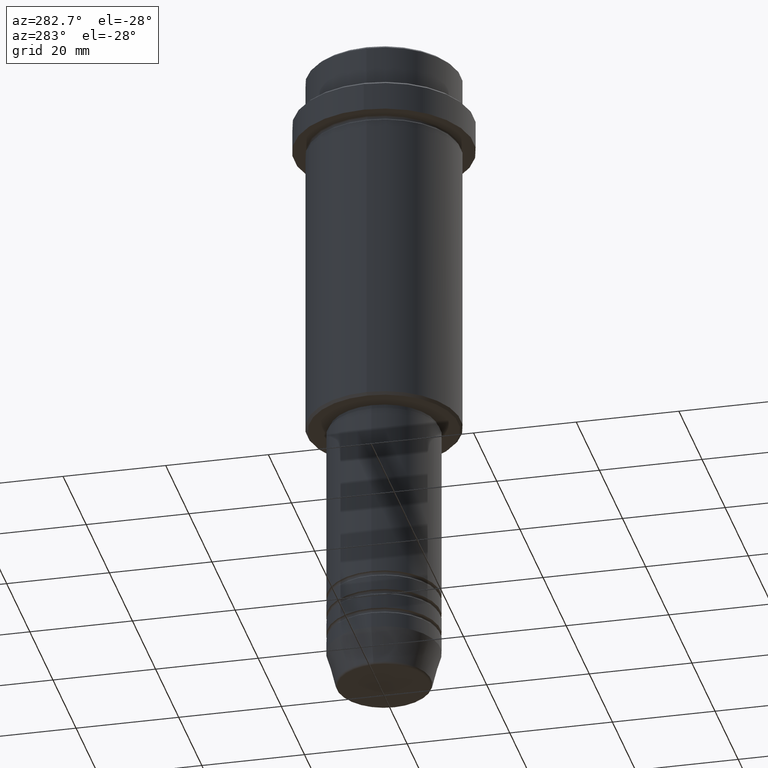
[diagram: clean part render]
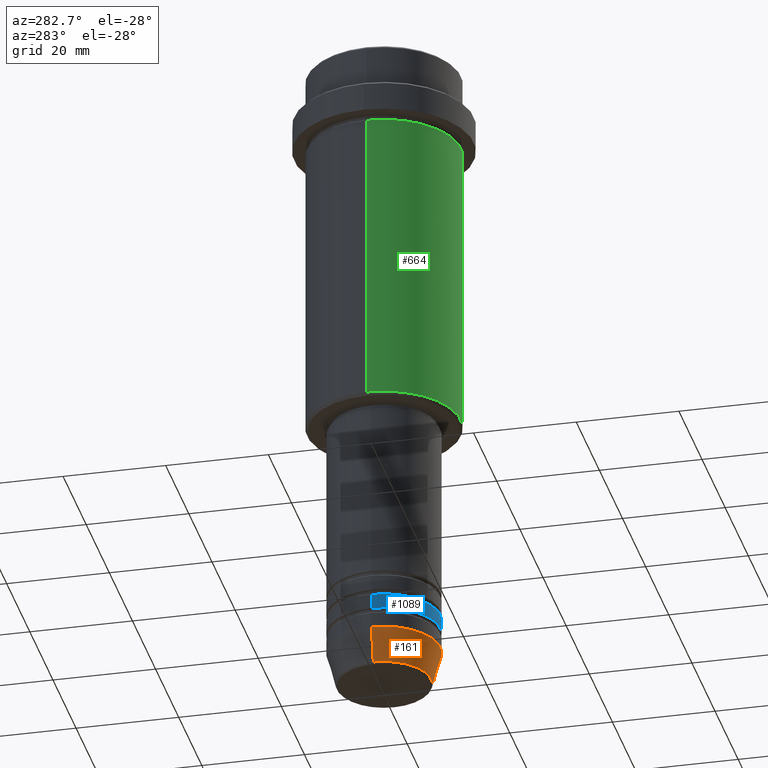
[diagram: same view with three faces highlighted in distinct colors, each labeled with its STEP entity id]
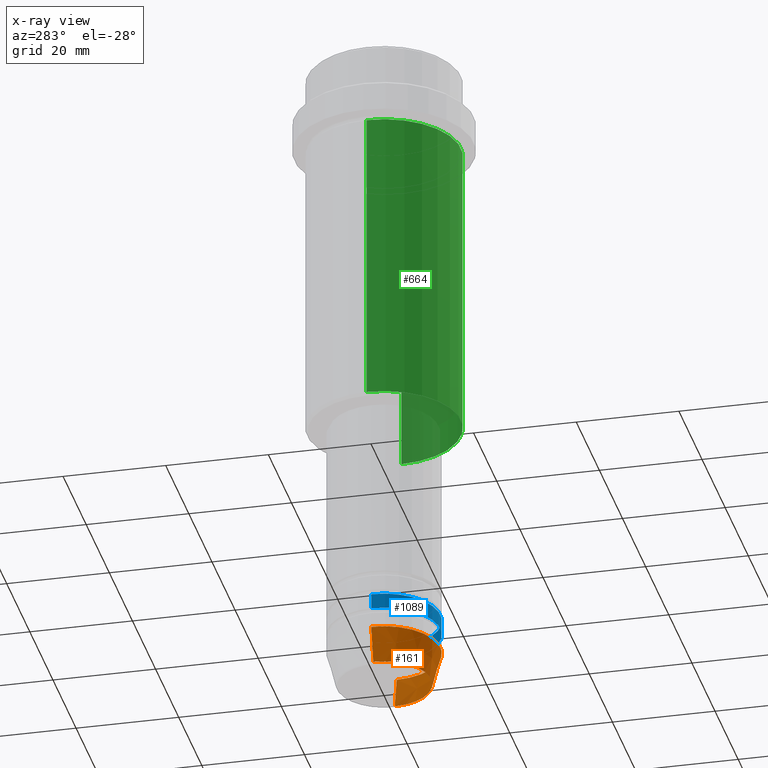
[diagram: x-ray of the same camera — body ghosted, the three highlighted faces saturated]
A machine part, auxiliary view with three faces highlighted in distinct colors.
The next image is the same camera in x-ray (body ghosted, the three faces saturated) — at least one of them is partly hidden behind the body in this view.
Their STEP definitions:

[orange] entity #161 — the highlighted conical surface has half-angle 15 deg.
#38 = LINE ( 'NONE', #672, #1401 ) ;
#68 = VERTEX_POINT ( 'NONE', #296 ) ;
#161 = ADVANCED_FACE ( 'NONE', ( #473 ), #354, .T. ) ;
#224 = DIRECTION ( 'NONE',  ( 0.2588190451025213501, 0.000000000000000000, 0.9659258262890680902 ) ) ;
#296 = CARTESIAN_POINT ( 'NONE',  ( -11.00000000000000000, 1.347111479062088405E-15, -123.0000000000000000 ) ) ;
#354 = CONICAL_SURFACE ( 'NONE', #538, 11.00000000000000000, 0.2617993877991500740 ) ;
#412 = CARTESIAN_POINT ( 'NONE',  ( 0.000000000000000000, 0.000000000000000000, -123.0000000000000000 ) ) ;
#440 = EDGE_LOOP ( 'NONE', ( #731, #480, #917, #903 ) ) ;
#473 = FACE_OUTER_BOUND ( 'NONE', #440, .T. ) ;
#480 = ORIENTED_EDGE ( 'NONE', *, *, #1203, .T. ) ;
#499 = VERTEX_POINT ( 'NONE', #1074 ) ;
#531 = CARTESIAN_POINT ( 'NONE',  ( 0.000000000000000000, 0.000000000000000000, -129.6294095225512422 ) ) ;
#538 = AXIS2_PLACEMENT_3D ( 'NONE', #412, #1385, #1057 ) ;
#540 = CARTESIAN_POINT ( 'NONE',  ( 0.000000000000000000, 0.000000000000000000, -123.0000000000000000 ) ) ;
#583 = VECTOR ( 'NONE', #224, 1000.000000000000000 ) ;
#584 = EDGE_CURVE ( 'NONE', #1094, #68, #38, .T. ) ;
#651 = LINE ( 'NONE', #1079, #583 ) ;
#672 = CARTESIAN_POINT ( 'NONE',  ( -11.00000000000000000, 1.347111479062088405E-15, -123.0000000000000000 ) ) ;
#686 = EDGE_CURVE ( 'NONE', #1340, #499, #651, .T. ) ;
#731 = ORIENTED_EDGE ( 'NONE', *, *, #584, .F. ) ;
#765 = DIRECTION ( 'NONE',  ( 1.000000000000000000, 0.000000000000000000, 0.000000000000000000 ) ) ;
#876 = CIRCLE ( 'NONE', #1152, 9.223655072137187716 ) ;
#903 = ORIENTED_EDGE ( 'NONE', *, *, #1212, .F. ) ;
#915 = AXIS2_PLACEMENT_3D ( 'NONE', #540, #1391, #984 ) ;
#917 = ORIENTED_EDGE ( 'NONE', *, *, #686, .T. ) ;
#984 = DIRECTION ( 'NONE',  ( 1.000000000000000000, 0.000000000000000000, 0.000000000000000000 ) ) ;
#1057 = DIRECTION ( 'NONE',  ( 1.000000000000000000, 0.000000000000000000, 0.000000000000000000 ) ) ;
#1058 = DIRECTION ( 'NONE',  ( -0.000000000000000000, -0.000000000000000000, 1.000000000000000000 ) ) ;
#1074 = CARTESIAN_POINT ( 'NONE',  ( 11.00000000000000000, 0.000000000000000000, -123.0000000000000000 ) ) ;
#1079 = CARTESIAN_POINT ( 'NONE',  ( 11.00000000000000000, 0.000000000000000000, -123.0000000000000000 ) ) ;
#1094 = VERTEX_POINT ( 'NONE', #1163 ) ;
#1100 = DIRECTION ( 'NONE',  ( -0.2588190451025213501, 3.169619151431772337E-17, 0.9659258262890680902 ) ) ;
#1112 = CARTESIAN_POINT ( 'NONE',  ( 9.223655072137187716, 0.000000000000000000, -129.6294095225512422 ) ) ;
#1152 = AXIS2_PLACEMENT_3D ( 'NONE', #531, #1058, #765 ) ;
#1163 = CARTESIAN_POINT ( 'NONE',  ( -9.223655072137187716, 1.238341722557647004E-15, -129.6294095225512422 ) ) ;
#1203 = EDGE_CURVE ( 'NONE', #1094, #1340, #876, .T. ) ;
#1212 = EDGE_CURVE ( 'NONE', #68, #499, #1331, .T. ) ;
#1331 = CIRCLE ( 'NONE', #915, 11.00000000000000000 ) ;
#1340 = VERTEX_POINT ( 'NONE', #1112 ) ;
#1385 = DIRECTION ( 'NONE',  ( -0.000000000000000000, -0.000000000000000000, 1.000000000000000000 ) ) ;
#1391 = DIRECTION ( 'NONE',  ( -0.000000000000000000, -0.000000000000000000, 1.000000000000000000 ) ) ;
#1401 = VECTOR ( 'NONE', #1100, 1000.000000000000000 ) ;

[blue] entity #1089 — the highlighted cylindrical surface (partial cylindrical patch) has radius 11 mm, axis along (-0, -0, 1).
#37 = ORIENTED_EDGE ( 'NONE', *, *, #747, .F. ) ;
#55 = DIRECTION ( 'NONE',  ( -0.000000000000000000, -0.000000000000000000, 1.000000000000000000 ) ) ;
#71 = CARTESIAN_POINT ( 'NONE',  ( -11.00000000000000000, 1.347111479062088405E-15, -118.9999999999998863 ) ) ;
#75 = FACE_OUTER_BOUND ( 'NONE', #623, .T. ) ;
#90 = VERTEX_POINT ( 'NONE', #1361 ) ;
#105 = AXIS2_PLACEMENT_3D ( 'NONE', #375, #55, #501 ) ;
#152 = VECTOR ( 'NONE', #792, 1000.000000000000000 ) ;
#168 = DIRECTION ( 'NONE',  ( 1.000000000000000000, 0.000000000000000000, 0.000000000000000000 ) ) ;
#183 = DIRECTION ( 'NONE',  ( -0.000000000000000000, -0.000000000000000000, 1.000000000000000000 ) ) ;
#184 = DIRECTION ( 'NONE',  ( -0.000000000000000000, -0.000000000000000000, 1.000000000000000000 ) ) ;
#192 = EDGE_CURVE ( 'NONE', #636, #713, #677, .T. ) ;
#299 = EDGE_CURVE ( 'NONE', #636, #555, #911, .T. ) ;
#351 = CARTESIAN_POINT ( 'NONE',  ( -11.00000000000000000, 1.347111479062088405E-15, 0.000000000000000000 ) ) ;
#375 = CARTESIAN_POINT ( 'NONE',  ( 0.000000000000000000, 0.000000000000000000, -118.9999999999998863 ) ) ;
#416 = CARTESIAN_POINT ( 'NONE',  ( -11.00000000000000000, 1.347111479062088405E-15, -115.9999999999999005 ) ) ;
#467 = VECTOR ( 'NONE', #470, 1000.000000000000000 ) ;
#470 = DIRECTION ( 'NONE',  ( -0.000000000000000000, -0.000000000000000000, 1.000000000000000000 ) ) ;
#486 = DIRECTION ( 'NONE',  ( 1.000000000000000000, 0.000000000000000000, 0.000000000000000000 ) ) ;
#501 = DIRECTION ( 'NONE',  ( 1.000000000000000000, 0.000000000000000000, 0.000000000000000000 ) ) ;
#555 = VERTEX_POINT ( 'NONE', #836 ) ;
#609 = AXIS2_PLACEMENT_3D ( 'NONE', #1240, #183, #168 ) ;
#610 = AXIS2_PLACEMENT_3D ( 'NONE', #853, #184, #486 ) ;
#623 = EDGE_LOOP ( 'NONE', ( #869, #740, #928, #37 ) ) ;
#636 = VERTEX_POINT ( 'NONE', #71 ) ;
#677 = LINE ( 'NONE', #351, #152 ) ;
#713 = VERTEX_POINT ( 'NONE', #416 ) ;
#740 = ORIENTED_EDGE ( 'NONE', *, *, #299, .T. ) ;
#747 = EDGE_CURVE ( 'NONE', #713, #90, #873, .T. ) ;
#792 = DIRECTION ( 'NONE',  ( -0.000000000000000000, -0.000000000000000000, 1.000000000000000000 ) ) ;
#809 = CARTESIAN_POINT ( 'NONE',  ( 11.00000000000000000, 0.000000000000000000, 0.000000000000000000 ) ) ;
#836 = CARTESIAN_POINT ( 'NONE',  ( 11.00000000000000000, 0.000000000000000000, -118.9999999999998863 ) ) ;
#853 = CARTESIAN_POINT ( 'NONE',  ( 0.000000000000000000, 0.000000000000000000, 0.000000000000000000 ) ) ;
#869 = ORIENTED_EDGE ( 'NONE', *, *, #192, .F. ) ;
#873 = CIRCLE ( 'NONE', #609, 11.00000000000000000 ) ;
#911 = CIRCLE ( 'NONE', #105, 11.00000000000000000 ) ;
#928 = ORIENTED_EDGE ( 'NONE', *, *, #1010, .T. ) ;
#1010 = EDGE_CURVE ( 'NONE', #555, #90, #1018, .T. ) ;
#1018 = LINE ( 'NONE', #809, #467 ) ;
#1038 = CYLINDRICAL_SURFACE ( 'NONE', #610, 11.00000000000000000 ) ;
#1089 = ADVANCED_FACE ( 'NONE', ( #75 ), #1038, .T. ) ;
#1240 = CARTESIAN_POINT ( 'NONE',  ( 0.000000000000000000, 0.000000000000000000, -115.9999999999999005 ) ) ;
#1361 = CARTESIAN_POINT ( 'NONE',  ( 11.00000000000000000, 0.000000000000000000, -115.9999999999999005 ) ) ;

[green] entity #664 — the highlighted cylindrical surface (partial cylindrical patch) has radius 15 mm, axis along (-0, -0, 1).
#30 = AXIS2_PLACEMENT_3D ( 'NONE', #1314, #995, #1207 ) ;
#44 = ORIENTED_EDGE ( 'NONE', *, *, #593, .F. ) ;
#72 = VERTEX_POINT ( 'NONE', #1384 ) ;
#84 = AXIS2_PLACEMENT_3D ( 'NONE', #596, #391, #507 ) ;
#96 = VERTEX_POINT ( 'NONE', #841 ) ;
#137 = VERTEX_POINT ( 'NONE', #1251 ) ;
#284 = EDGE_CURVE ( 'NONE', #1367, #96, #697, .T. ) ;
#293 = EDGE_LOOP ( 'NONE', ( #1055, #323, #854, #44 ) ) ;
#323 = ORIENTED_EDGE ( 'NONE', *, *, #284, .T. ) ;
#325 = DIRECTION ( 'NONE',  ( -0.000000000000000000, -0.000000000000000000, 1.000000000000000000 ) ) ;
#345 = LINE ( 'NONE', #1071, #1002 ) ;
#391 = DIRECTION ( 'NONE',  ( -0.000000000000000000, -0.000000000000000000, 1.000000000000000000 ) ) ;
#403 = CIRCLE ( 'NONE', #913, 15.00000000000000178 ) ;
#462 = LINE ( 'NONE', #1230, #1040 ) ;
#507 = DIRECTION ( 'NONE',  ( -1.000000000000000000, 0.000000000000000000, 0.000000000000000000 ) ) ;
#578 = CARTESIAN_POINT ( 'NONE',  ( -15.00000000000000000, 1.836970198721029589E-15, -74.50000000000004263 ) ) ;
#593 = EDGE_CURVE ( 'NONE', #137, #72, #403, .T. ) ;
#596 = CARTESIAN_POINT ( 'NONE',  ( 0.000000000000000000, 0.000000000000000000, -74.50000000000004263 ) ) ;
#664 = ADVANCED_FACE ( 'NONE', ( #774 ), #665, .T. ) ;
#665 = CYLINDRICAL_SURFACE ( 'NONE', #30, 15.00000000000000000 ) ;
#674 = EDGE_CURVE ( 'NONE', #1367, #137, #345, .T. ) ;
#697 = CIRCLE ( 'NONE', #84, 15.00000000000000000 ) ;
#774 = FACE_OUTER_BOUND ( 'NONE', #293, .T. ) ;
#841 = CARTESIAN_POINT ( 'NONE',  ( 15.00000000000000000, 0.000000000000000000, -74.50000000000004263 ) ) ;
#854 = ORIENTED_EDGE ( 'NONE', *, *, #992, .T. ) ;
#913 = AXIS2_PLACEMENT_3D ( 'NONE', #944, #1365, #1256 ) ;
#944 = CARTESIAN_POINT ( 'NONE',  ( 0.000000000000000000, 0.000000000000000000, -16.00000000000000000 ) ) ;
#992 = EDGE_CURVE ( 'NONE', #96, #72, #462, .T. ) ;
#995 = DIRECTION ( 'NONE',  ( -0.000000000000000000, -0.000000000000000000, 1.000000000000000000 ) ) ;
#1002 = VECTOR ( 'NONE', #325, 1000.000000000000000 ) ;
#1040 = VECTOR ( 'NONE', #1118, 1000.000000000000000 ) ;
#1055 = ORIENTED_EDGE ( 'NONE', *, *, #674, .F. ) ;
#1071 = CARTESIAN_POINT ( 'NONE',  ( -15.00000000000000000, 1.836970198721029589E-15, 0.000000000000000000 ) ) ;
#1118 = DIRECTION ( 'NONE',  ( -0.000000000000000000, -0.000000000000000000, 1.000000000000000000 ) ) ;
#1207 = DIRECTION ( 'NONE',  ( 1.000000000000000000, 0.000000000000000000, 0.000000000000000000 ) ) ;
#1230 = CARTESIAN_POINT ( 'NONE',  ( 15.00000000000000000, 0.000000000000000000, 0.000000000000000000 ) ) ;
#1251 = CARTESIAN_POINT ( 'NONE',  ( -15.00000000000000355, 1.836970198721029983E-15, -16.00000000000000000 ) ) ;
#1256 = DIRECTION ( 'NONE',  ( 1.000000000000000000, 0.000000000000000000, 0.000000000000000000 ) ) ;
#1314 = CARTESIAN_POINT ( 'NONE',  ( 0.000000000000000000, 0.000000000000000000, 0.000000000000000000 ) ) ;
#1365 = DIRECTION ( 'NONE',  ( -0.000000000000000000, -0.000000000000000000, 1.000000000000000000 ) ) ;
#1367 = VERTEX_POINT ( 'NONE', #578 ) ;
#1384 = CARTESIAN_POINT ( 'NONE',  ( 15.00000000000000178, 0.000000000000000000, -16.00000000000000000 ) ) ;